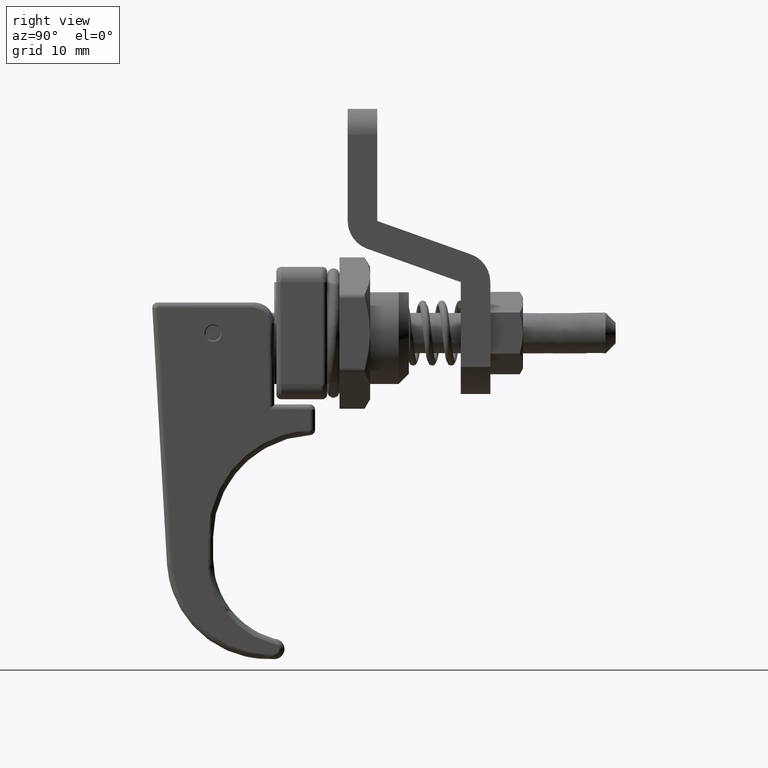
[diagram: clean part render]
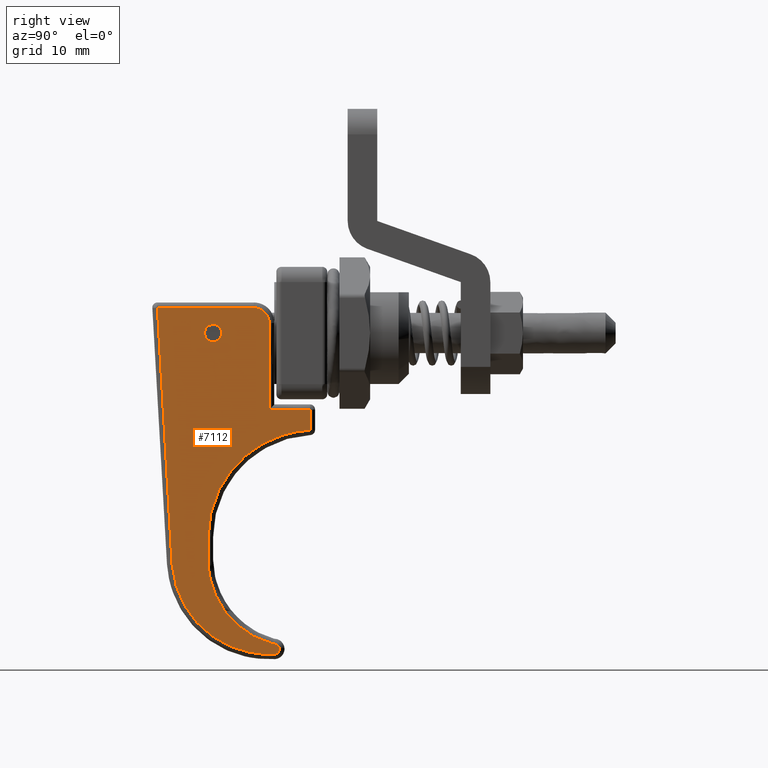
[diagram: same view with one face highlighted and labeled with its STEP entity id]
A machine part, right view. The second image highlights one B-rep face of the part: STEP entity #7112.
In plain terms, the highlighted face is a freeform B-spline surface patch.
Its self-contained STEP definition (entity closure, byte-faithful):
#2604=CARTESIAN_POINT('',(-11.819612597110201,-5.846651494862154,-0.586144028097862));
#2605=VERTEX_POINT('',#2604);
#2606=CARTESIAN_POINT('',(-11.199999999999999,-5.908010121704473,0.845718698018925));
#2607=VERTEX_POINT('',#2606);
#2608=CARTESIAN_POINT('',(-11.819612597110204,-5.846651494862155,-0.586144028097862));
#2609=CARTESIAN_POINT('',(-12.049993723385780,-5.857164303699345,-0.340817496272972));
#2610=CARTESIAN_POINT('',(-12.049995082950160,-5.871585854865340,-0.004276692965214));
#2611=CARTESIAN_POINT('',(-12.049998516784438,-5.908010181281950,0.845720088316823));
#2612=CARTESIAN_POINT('',(-11.199999999999999,-5.908010121704473,0.845718698018925));
#2620=(BOUNDED_CURVE()B_SPLINE_CURVE(2,(#2608,#2609,#2610,#2611,#2612),.UNSPECIFIED.,.F.,.U.)B_SPLINE_CURVE_WITH_KNOTS((3,2,3),(0.129739683217090,0.250000000000000,0.500000000000000),.UNSPECIFIED.)CURVE()GEOMETRIC_REPRESENTATION_ITEM()RATIONAL_B_SPLINE_CURVE((0.853763941893248,0.859106274887712,1.0,0.707106781186547,1.0))REPRESENTATION_ITEM(''));
#2621=EDGE_CURVE('',#2605,#2607,#2620,.T.);
#2636=CARTESIAN_POINT('',(-11.199999999999999,-5.835161193012246,-0.854281301981075));
#2637=VERTEX_POINT('',#2636);
#2647=CARTESIAN_POINT('',(-11.199999999999999,-5.908010121704473,0.845718698018925));
#2648=CARTESIAN_POINT('',(-10.350000000000000,-5.908010121704474,0.845718698018925));
#2649=CARTESIAN_POINT('',(-10.350000000000000,-5.871585657358360,-0.004281301981075));
#2650=CARTESIAN_POINT('',(-10.350000000000000,-5.835161193012248,-0.854281301981075));
#2651=CARTESIAN_POINT('',(-11.199999999999999,-5.835161193012247,-0.854281301981075));
#2659=(BOUNDED_CURVE()B_SPLINE_CURVE(2,(#2647,#2648,#2649,#2650,#2651),.UNSPECIFIED.,.F.,.U.)B_SPLINE_CURVE_WITH_KNOTS((3,2,3),(0.500000000000000,0.750000000000000,1.0),.UNSPECIFIED.)CURVE()GEOMETRIC_REPRESENTATION_ITEM()RATIONAL_B_SPLINE_CURVE((1.0,0.707106781186547,1.0,0.707106781186547,1.0))REPRESENTATION_ITEM(''));
#2660=EDGE_CURVE('',#2607,#2637,#2659,.T.);
#2777=CARTESIAN_POINT('',(-11.199999999999999,-5.835161193012246,-0.854281301981075));
#2778=CARTESIAN_POINT('',(-11.279569109524560,-5.835160364401394,-0.854300638414477));
#2779=CARTESIAN_POINT('',(-11.445929708805270,-5.836169417132378,-0.830753419897001));
#2780=CARTESIAN_POINT('',(-11.658382116688131,-5.840387646058207,-0.732316980231623));
#2781=CARTESIAN_POINT('',(-11.775081098002280,-5.844618514412903,-0.633585587304812));
#2782=CARTESIAN_POINT('',(-11.819612597110201,-5.846651494862154,-0.586144028097862));
#2783=B_SPLINE_CURVE_WITH_KNOTS('',3,(#2777,#2778,#2779,#2780,#2781,#2782),.UNSPECIFIED.,.F.,.U.,(4,1,1,4),(0.000000025890084,0.238709884501253,0.499117330984318,0.694425967539111),.UNSPECIFIED.);
#2784=EDGE_CURVE('',#2637,#2605,#2783,.T.);
#5493=CARTESIAN_POINT('',(-11.699999999999999,-5.013801297482910,-20.021506509905400));
#5494=VERTEX_POINT('',#5493);
#5506=CARTESIAN_POINT('',(-11.699999999999999,-4.917212188499221,-22.275506509905401));
#5507=VERTEX_POINT('',#5506);
#5508=CARTESIAN_POINT('',(-11.699999999999999,-4.917212188499221,-22.275506509905401));
#5509=CARTESIAN_POINT('',(-11.699999999999999,-5.013801297482910,-20.021506509905400));
#5510=QUASI_UNIFORM_CURVE('',1,(#5508,#5509),.UNSPECIFIED.,.F.,.U.);
#5511=EDGE_CURVE('',#5507,#5494,#5510,.T.);
#5864=CARTESIAN_POINT('',(-5.251666339076050,-4.563737334621821,-30.524183084550700));
#5865=VERTEX_POINT('',#5864);
#5907=CARTESIAN_POINT('',(-5.251666339076050,-4.563737334621825,-30.524183084550710));
#5908=CARTESIAN_POINT('',(-11.700000000000001,-4.632466996469109,-28.920310148628559));
#5909=CARTESIAN_POINT('',(-11.699999999999999,-4.917212188499221,-22.275506509905401));
#5917=(BOUNDED_CURVE()B_SPLINE_CURVE(2,(#5907,#5908,#5909),.UNSPECIFIED.,.F.,.U.)CURVE()GEOMETRIC_REPRESENTATION_ITEM()QUASI_UNIFORM_CURVE()RATIONAL_B_SPLINE_CURVE((1.0,0.787836439395746,1.0))REPRESENTATION_ITEM(''));
#5918=EDGE_CURVE('',#5865,#5507,#5917,.T.);
#6041=CARTESIAN_POINT('',(-1.700000000000000,-5.463240126848340,-9.533418028203871));
#6042=VERTEX_POINT('',#6041);
#6053=CARTESIAN_POINT('',(-11.699999999999999,-5.013801297482910,-20.021506509905400));
#6054=CARTESIAN_POINT('',(-11.700000000000003,-5.442811089149912,-10.010149322826694));
#6055=CARTESIAN_POINT('',(-1.699999999999999,-5.463240126848341,-9.533418028203897));
#6063=(BOUNDED_CURVE()B_SPLINE_CURVE(2,(#6053,#6054,#6055),.UNSPECIFIED.,.F.,.U.)CURVE()GEOMETRIC_REPRESENTATION_ITEM()QUASI_UNIFORM_CURVE()RATIONAL_B_SPLINE_CURVE((1.0,0.723746864455746,1.0))REPRESENTATION_ITEM(''));
#6064=EDGE_CURVE('',#5494,#6042,#6063,.T.);
#6217=CARTESIAN_POINT('',(-5.303319501114920,-4.521462156309170,-31.510715136863158));
#6218=VERTEX_POINT('',#6217);
#6219=CARTESIAN_POINT('',(-5.303319501114920,-4.521462156309170,-31.510715136863158));
#6220=CARTESIAN_POINT('',(-4.985913801982634,-4.518589543041768,-31.577750337546647));
#6221=CARTESIAN_POINT('',(-4.795354437379440,-4.529839986561511,-31.315210389095750));
#6222=CARTESIAN_POINT('',(-4.604795072776247,-4.541090430081251,-31.052670440644860));
#6223=CARTESIAN_POINT('',(-4.766895356527463,-4.553132127259318,-30.771665825062939));
#6224=CARTESIAN_POINT('',(-4.928995640278680,-4.565173824437386,-30.490661209481011));
#6225=CARTESIAN_POINT('',(-5.251666339076050,-4.563737334621749,-30.524183084550710));
#6233=(BOUNDED_CURVE()B_SPLINE_CURVE(2,(#6219,#6220,#6221,#6222,#6223,#6224,#6225),.UNSPECIFIED.,.F.,.U.)B_SPLINE_CURVE_WITH_KNOTS((3,2,2,3),(0.0,0.333333333333333,0.666666666666667,1.0),.UNSPECIFIED.)CURVE()GEOMETRIC_REPRESENTATION_ITEM()RATIONAL_B_SPLINE_CURVE((1.0,0.838897721791776,1.0,0.838897721791776,1.0,0.838897721791776,1.0))REPRESENTATION_ITEM(''));
#6234=EDGE_CURVE('',#6218,#5865,#6233,.T.);
#6464=CARTESIAN_POINT('',(-15.233179800950801,-4.899896630683370,-22.679581749107552));
#6465=VERTEX_POINT('',#6464);
#6492=CARTESIAN_POINT('',(-15.233179800950760,-4.899896630683359,-22.679581749107552));
#6493=CARTESIAN_POINT('',(-14.589204991706429,-4.502479396056097,-31.953696152638141));
#6494=CARTESIAN_POINT('',(-5.303319501114920,-4.521462156309156,-31.510715136863141));
#6502=(BOUNDED_CURVE()B_SPLINE_CURVE(2,(#6492,#6493,#6494),.UNSPECIFIED.,.F.,.U.)CURVE()GEOMETRIC_REPRESENTATION_ITEM()QUASI_UNIFORM_CURVE()RATIONAL_B_SPLINE_CURVE((1.0,0.714722419654140,1.0))REPRESENTATION_ITEM(''));
#6503=EDGE_CURVE('',#6465,#6218,#6502,.T.);
#6524=CARTESIAN_POINT('',(-1.700000000000000,-5.549455184925750,-7.521506509905400));
#6525=VERTEX_POINT('',#6524);
#6536=CARTESIAN_POINT('',(-1.700000000000000,-5.463240126848340,-9.533418028203871));
#6537=CARTESIAN_POINT('',(-1.700000000000000,-5.549455184925750,-7.521506509905400));
#6538=QUASI_UNIFORM_CURVE('',1,(#6536,#6537),.UNSPECIFIED.,.F.,.U.);
#6539=EDGE_CURVE('',#6042,#6525,#6538,.T.);
#6579=CARTESIAN_POINT('',(-16.670841482604452,-5.977982580111120,2.478593490094640));
#6580=VERTEX_POINT('',#6579);
#6581=CARTESIAN_POINT('',(-16.670841482604452,-5.977982580111120,2.478593490094640));
#6582=CARTESIAN_POINT('',(-15.233179800950801,-4.899896630683370,-22.679581749107552));
#6583=QUASI_UNIFORM_CURVE('',1,(#6581,#6582),.UNSPECIFIED.,.F.,.U.);
#6584=EDGE_CURVE('',#6580,#6465,#6583,.T.);
#6719=CARTESIAN_POINT('',(-5.700000000000000,-5.549455184925750,-7.521506509905400));
#6720=VERTEX_POINT('',#6719);
#6734=CARTESIAN_POINT('',(-1.700000000000000,-5.549455184925750,-7.521506509905400));
#6735=CARTESIAN_POINT('',(-5.700000000000000,-5.549455184925750,-7.521506509905400));
#6736=QUASI_UNIFORM_CURVE('',1,(#6734,#6735),.UNSPECIFIED.,.F.,.U.);
#6737=EDGE_CURVE('',#6525,#6720,#6736,.T.);
#6777=CARTESIAN_POINT('',(-7.200000000000000,-5.977982580111120,2.478593490094640));
#6778=VERTEX_POINT('',#6777);
#6798=CARTESIAN_POINT('',(-7.200000000000000,-5.977982580111120,2.478593490094640));
#6799=CARTESIAN_POINT('',(-16.670841482604452,-5.977982580111120,2.478593490094640));
#6800=QUASI_UNIFORM_CURVE('',1,(#6798,#6799),.UNSPECIFIED.,.F.,.U.);
#6801=EDGE_CURVE('',#6778,#6580,#6800,.T.);
#6822=CARTESIAN_POINT('',(-5.700000000000000,-5.913704113617980,0.978593490094644));
#6823=VERTEX_POINT('',#6822);
#6835=CARTESIAN_POINT('',(-5.700000000000000,-5.549455184925750,-7.521506509905400));
#6836=CARTESIAN_POINT('',(-5.700000000000000,-5.913704113617980,0.978593490094644));
#6837=QUASI_UNIFORM_CURVE('',1,(#6835,#6836),.UNSPECIFIED.,.F.,.U.);
#6838=EDGE_CURVE('',#6720,#6823,#6837,.T.);
#6888=CARTESIAN_POINT('',(-5.700000000000000,-5.913704113617980,0.978593490094644));
#6889=CARTESIAN_POINT('',(-5.700000016036010,-5.940329129016989,1.599913899202802));
#6890=CARTESIAN_POINT('',(-6.139339887987067,-5.959155855720802,2.039253721641347));
#6891=CARTESIAN_POINT('',(-6.578679759938123,-5.977982582424613,2.478593544079892));
#6892=CARTESIAN_POINT('',(-7.200000000000000,-5.977982580111120,2.478593490094640));
#6900=(BOUNDED_CURVE()B_SPLINE_CURVE(2,(#6888,#6889,#6890,#6891,#6892),.UNSPECIFIED.,.F.,.U.)B_SPLINE_CURVE_WITH_KNOTS((3,2,3),(0.0,0.500000000000000,1.0),.UNSPECIFIED.)CURVE()GEOMETRIC_REPRESENTATION_ITEM()RATIONAL_B_SPLINE_CURVE((1.0,0.923879526667865,1.0,0.923879526667865,1.0))REPRESENTATION_ITEM(''));
#6901=EDGE_CURVE('',#6823,#6778,#6900,.T.);
#7089=CARTESIAN_POINT('',(-17.418634704573051,-4.448226828292514,-33.219732137707638));
#7090=CARTESIAN_POINT('',(-17.418634704573051,-6.050758748510012,4.176895558486026));
#7091=CARTESIAN_POINT('',(-0.952206108782635,-4.448226828292514,-33.219732137707638));
#7092=CARTESIAN_POINT('',(-0.952206108782635,-6.050758748510012,4.176895558486026));
#7093=B_SPLINE_SURFACE_WITH_KNOTS('',1,1,((#7089,#7091),(#7090,#7092)),.UNSPECIFIED.,.F.,.F.,.U.,(2,2),(2,2),(0.0,37.430948045741971),(0.0,16.466428595790411),.UNSPECIFIED.);
#7094=ORIENTED_EDGE('',*,*,#5918,.T.);
#7095=ORIENTED_EDGE('',*,*,#5511,.T.);
#7096=ORIENTED_EDGE('',*,*,#6064,.T.);
#7097=ORIENTED_EDGE('',*,*,#6539,.T.);
#7098=ORIENTED_EDGE('',*,*,#6737,.T.);
#7099=ORIENTED_EDGE('',*,*,#6838,.T.);
#7100=ORIENTED_EDGE('',*,*,#6901,.T.);
#7101=ORIENTED_EDGE('',*,*,#6801,.T.);
#7102=ORIENTED_EDGE('',*,*,#6584,.T.);
#7103=ORIENTED_EDGE('',*,*,#6503,.T.);
#7104=ORIENTED_EDGE('',*,*,#6234,.T.);
#7105=EDGE_LOOP('',(#7094,#7095,#7096,#7097,#7098,#7099,#7100,#7101,#7102,#7103,#7104));
#7106=FACE_OUTER_BOUND('',#7105,.T.);
#7107=ORIENTED_EDGE('',*,*,#2660,.T.);
#7108=ORIENTED_EDGE('',*,*,#2784,.T.);
#7109=ORIENTED_EDGE('',*,*,#2621,.T.);
#7110=EDGE_LOOP('',(#7107,#7108,#7109));
#7111=FACE_BOUND('',#7110,.T.);
#7112=ADVANCED_FACE('',(#7106,#7111),#7093,.F.);